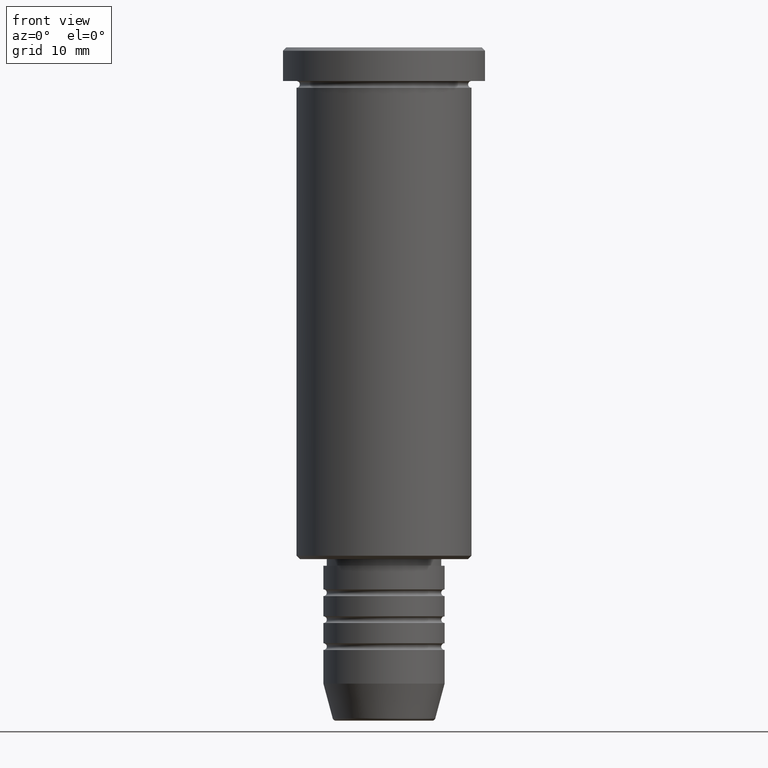
[diagram: clean part render]
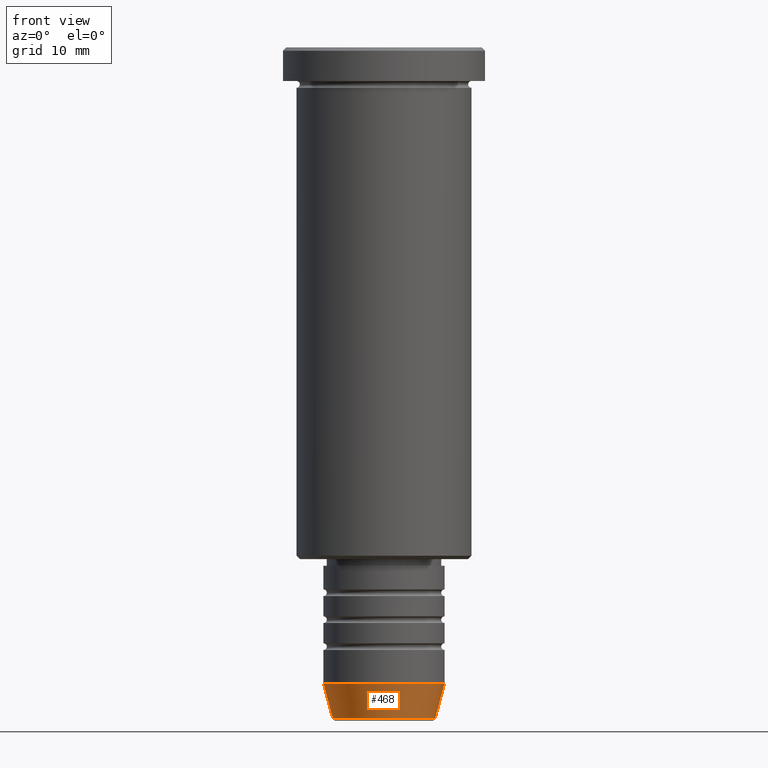
[diagram: same view with one face highlighted and labeled with its STEP entity id]
A machine part, front view. The second image highlights one B-rep face of the part: STEP entity #468.
In plain terms, the highlighted conical surface has half-angle 15 deg.
Its self-contained STEP definition (entity closure, byte-faithful):
#52 = EDGE_CURVE ( 'NONE', #750, #893, #372, .T. ) ;
#73 = EDGE_CURVE ( 'NONE', #893, #626, #835, .T. ) ;
#90 = ORIENTED_EDGE ( 'NONE', *, *, #73, .F. ) ;
#94 = EDGE_CURVE ( 'NONE', #750, #185, #1166, .T. ) ;
#132 = ORIENTED_EDGE ( 'NONE', *, *, #94, .T. ) ;
#185 = VERTEX_POINT ( 'NONE', #761 ) ;
#198 = CARTESIAN_POINT ( 'NONE',  ( 0.000000000000000000, 0.000000000000000000, -94.50000000000000000 ) ) ;
#277 = VECTOR ( 'NONE', #336, 1000.000000000000000 ) ;
#319 = EDGE_CURVE ( 'NONE', #185, #626, #891, .T. ) ;
#328 = CARTESIAN_POINT ( 'NONE',  ( 9.000000000000001776, 0.000000000000000000, -94.50000000000000000 ) ) ;
#336 = DIRECTION ( 'NONE',  ( 0.2588190451025214056, 0.000000000000000000, 0.9659258262890680902 ) ) ;
#370 = DIRECTION ( 'NONE',  ( 1.000000000000000000, 0.000000000000000000, 0.000000000000000000 ) ) ;
#372 = LINE ( 'NONE', #585, #456 ) ;
#399 = DIRECTION ( 'NONE',  ( 1.000000000000000000, 0.000000000000000000, 0.000000000000000000 ) ) ;
#438 = AXIS2_PLACEMENT_3D ( 'NONE', #707, #900, #399 ) ;
#456 = VECTOR ( 'NONE', #786, 1000.000000000000000 ) ;
#468 = ADVANCED_FACE ( 'NONE', ( #754 ), #804, .T. ) ;
#472 = DIRECTION ( 'NONE',  ( 1.000000000000000000, 0.000000000000000000, 0.000000000000000000 ) ) ;
#473 = EDGE_LOOP ( 'NONE', ( #1006, #132, #622, #90 ) ) ;
#560 = DIRECTION ( 'NONE',  ( -0.000000000000000000, -0.000000000000000000, 1.000000000000000000 ) ) ;
#585 = CARTESIAN_POINT ( 'NONE',  ( -9.000000000000001776, 1.102182119232617911E-15, -94.50000000000000000 ) ) ;
#622 = ORIENTED_EDGE ( 'NONE', *, *, #319, .T. ) ;
#626 = VERTEX_POINT ( 'NONE', #869 ) ;
#670 = CARTESIAN_POINT ( 'NONE',  ( 0.000000000000000000, 0.000000000000000000, -94.50000000000000000 ) ) ;
#707 = CARTESIAN_POINT ( 'NONE',  ( 0.000000000000000000, 0.000000000000000000, -99.62940952255125637 ) ) ;
#750 = VERTEX_POINT ( 'NONE', #801 ) ;
#754 = FACE_OUTER_BOUND ( 'NONE', #473, .T. ) ;
#761 = CARTESIAN_POINT ( 'NONE',  ( 7.625578860783879698, 0.000000000000000000, -99.62940952255125637 ) ) ;
#786 = DIRECTION ( 'NONE',  ( -0.2588190451025214056, 3.169619151431772953E-17, 0.9659258262890680902 ) ) ;
#801 = CARTESIAN_POINT ( 'NONE',  ( -7.625578860783880586, 1.018023096791544096E-15, -99.62940952255125637 ) ) ;
#804 = CONICAL_SURFACE ( 'NONE', #1028, 9.000000000000001776, 0.2617993877991501295 ) ;
#835 = CIRCLE ( 'NONE', #1084, 9.000000000000001776 ) ;
#869 = CARTESIAN_POINT ( 'NONE',  ( 9.000000000000001776, 0.000000000000000000, -94.50000000000000000 ) ) ;
#891 = LINE ( 'NONE', #328, #277 ) ;
#893 = VERTEX_POINT ( 'NONE', #1110 ) ;
#900 = DIRECTION ( 'NONE',  ( -0.000000000000000000, -0.000000000000000000, 1.000000000000000000 ) ) ;
#1006 = ORIENTED_EDGE ( 'NONE', *, *, #52, .F. ) ;
#1028 = AXIS2_PLACEMENT_3D ( 'NONE', #670, #1035, #472 ) ;
#1035 = DIRECTION ( 'NONE',  ( -0.000000000000000000, -0.000000000000000000, 1.000000000000000000 ) ) ;
#1084 = AXIS2_PLACEMENT_3D ( 'NONE', #198, #560, #370 ) ;
#1110 = CARTESIAN_POINT ( 'NONE',  ( -9.000000000000001776, 1.102182119232617911E-15, -94.50000000000000000 ) ) ;
#1166 = CIRCLE ( 'NONE', #438, 7.625578860783879698 ) ;